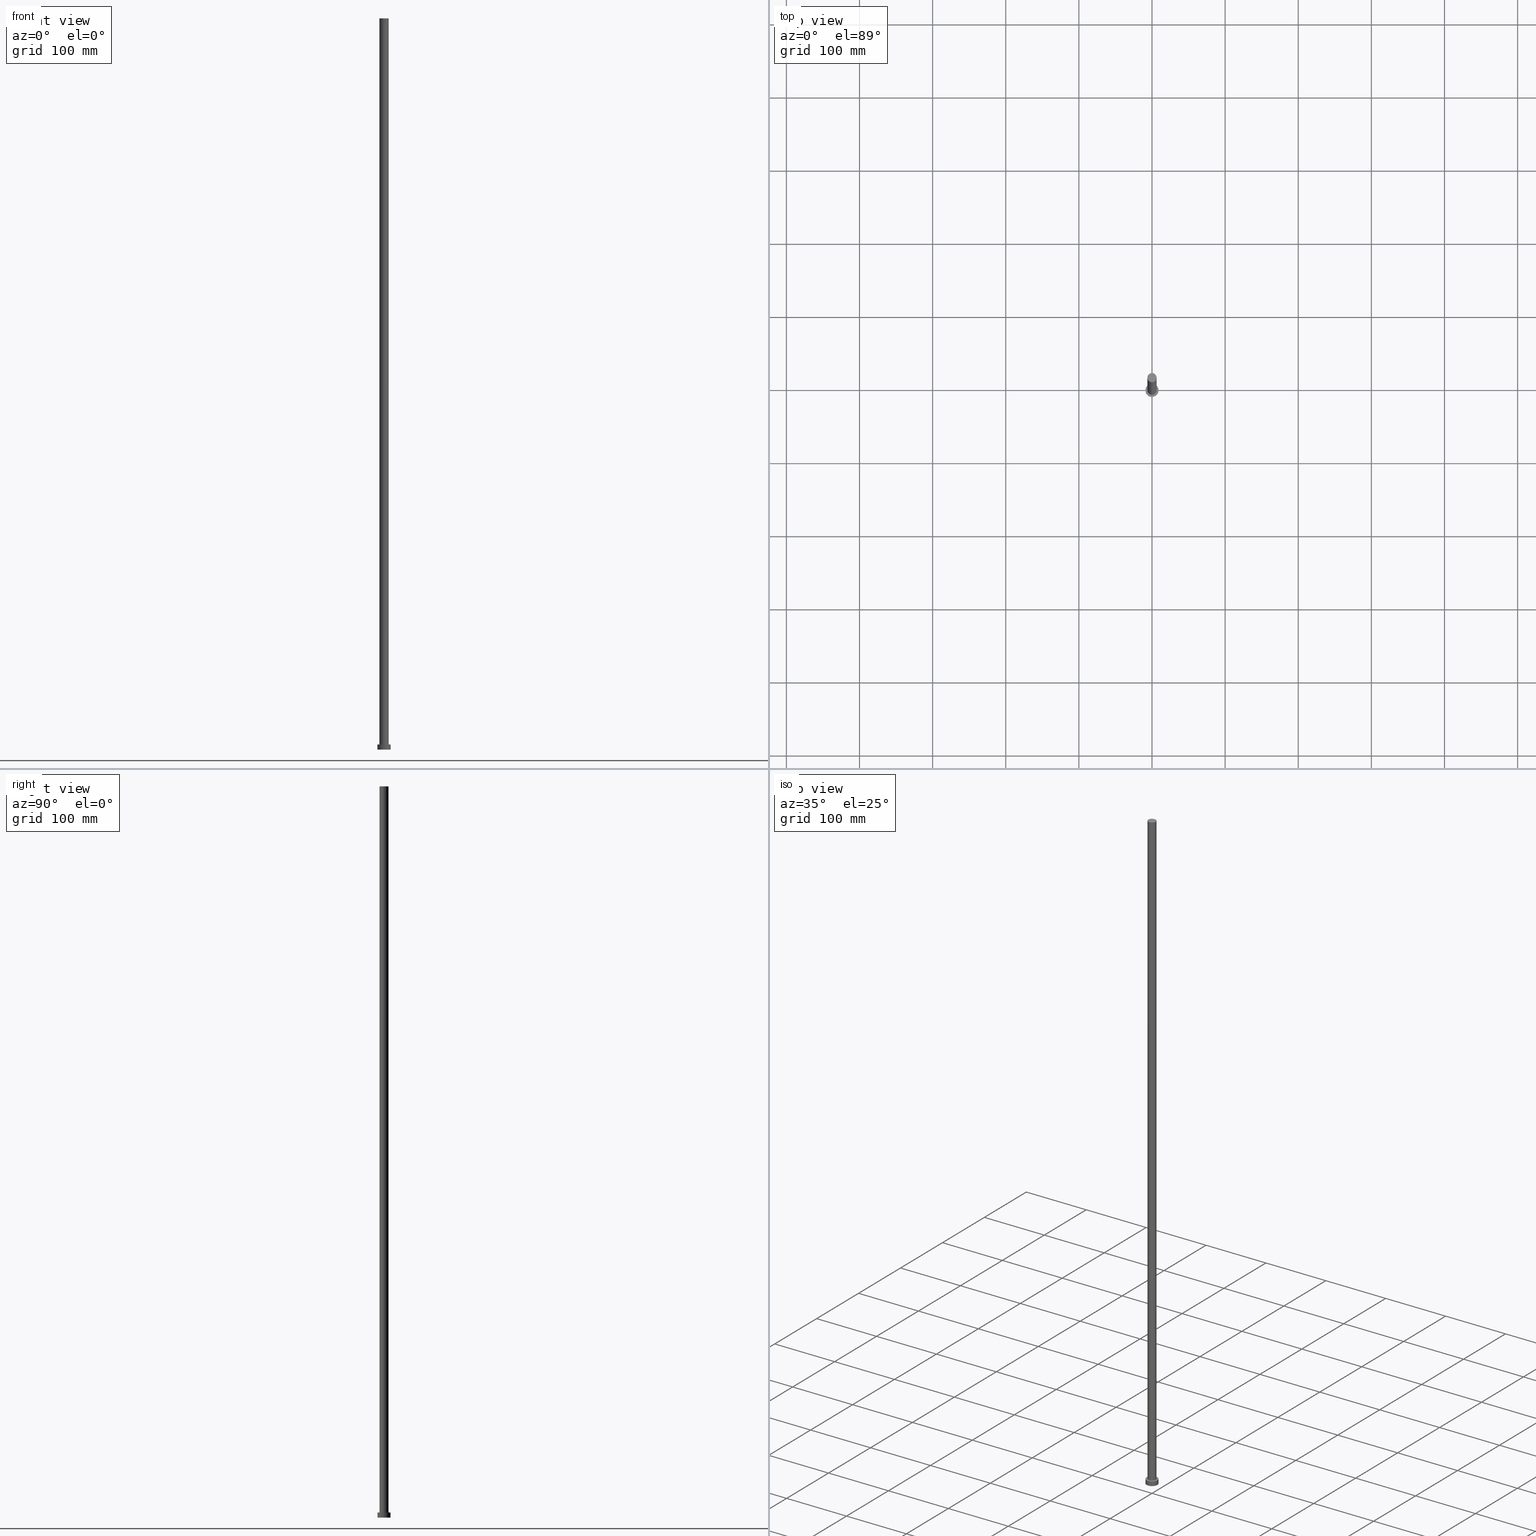
[diagram: canonical four-view strip — front | top / right | iso, engineering-drawing reading convention]
A machine part, canonical four-view strip (front | top / right | iso — engineering-drawing reading convention). The complete STEP part file that produces these views, byte-faithful:
ISO-10303-21;
HEADER;
FILE_DESCRIPTION (( 'STEP AP203' ),
    '1' );
FILE_NAME ('be90.STEP',
    '2023-02-13T10:36:49',
    ( '' ),
    ( '' ),
    'SwSTEP 2.0',
    'SolidWorks 2019',
    '' );
FILE_SCHEMA (( 'CONFIG_CONTROL_DESIGN' ));
ENDSEC;

DATA;
#1 = SHAPE_DEFINITION_REPRESENTATION ( #48, #78 ) ;
#2 = DIRECTION ( 'NONE',  ( 1.000000000000000000, 0.000000000000000000, 0.000000000000000000 ) ) ;
#3 = CARTESIAN_POINT ( 'NONE',  ( 0.000000000000000000, 0.000000000000000000, 1000.000000000000000 ) ) ;
#4 = CARTESIAN_POINT ( 'NONE',  ( -9.000000000000000000, 0.000000000000000000, 7.000000000000000000 ) ) ;
#5 = VECTOR ( 'NONE', #145, 1000.000000000000000 ) ;
#6 = AXIS2_PLACEMENT_3D ( 'NONE', #87, #164, #209 ) ;
#7 = CARTESIAN_POINT ( 'NONE',  ( 6.250000000000000000, 7.654042494670957606E-16, 7.000000000000000000 ) ) ;
#8 = UNCERTAINTY_MEASURE_WITH_UNIT (LENGTH_MEASURE( 1.000000000000000082E-05 ), #127, 'distance_accuracy_value', 'NONE');
#9 = DIRECTION ( 'NONE',  ( -0.000000000000000000, -0.000000000000000000, -1.000000000000000000 ) ) ;
#10 = AXIS2_PLACEMENT_3D ( 'NONE', #56, #107, #189 ) ;
#11 = DATE_AND_TIME ( #108, #92 ) ;
#12 = PLANE ( 'NONE',  #118 ) ;
#13 = PERSON_AND_ORGANIZATION ( #136, #235 ) ;
#14 = CIRCLE ( 'NONE', #71, 9.000000000000000000 ) ;
#15 = CC_DESIGN_SECURITY_CLASSIFICATION ( #183, ( #66 ) ) ;
#16 = CALENDAR_DATE ( 2023, 13, 2 ) ;
#17 = APPROVAL_DATE_TIME ( #254, #185 ) ;
#18 = DATE_TIME_ROLE ( 'classification_date' ) ;
#19 = APPROVAL_PERSON_ORGANIZATION ( #195, #185, #59 ) ;
#20 = ORIENTED_EDGE ( 'NONE', *, *, #113, .T. ) ;
#21 = PERSON_AND_ORGANIZATION ( #136, #235 ) ;
#22 = ORIENTED_EDGE ( 'NONE', *, *, #251, .T. ) ;
#23 = EDGE_CURVE ( 'NONE', #239, #63, #103, .T. ) ;
#24 = ORIENTED_EDGE ( 'NONE', *, *, #23, .T. ) ;
#25 = DIRECTION ( 'NONE',  ( 1.000000000000000000, 0.000000000000000000, 0.000000000000000000 ) ) ;
#26 = CARTESIAN_POINT ( 'NONE',  ( -9.000000000000000000, 0.000000000000000000, 0.000000000000000000 ) ) ;
#27 = CARTESIAN_POINT ( 'NONE',  ( 6.250000000000000000, 7.654042494670957606E-16, 1000.000000000000000 ) ) ;
#28 = LOCAL_TIME ( 11, 36, 49.00000000000000000, #148 ) ;
#29 = DIRECTION ( 'NONE',  ( 0.000000000000000000, 0.000000000000000000, 1.000000000000000000 ) ) ;
#30 = MECHANICAL_CONTEXT ( 'NONE', #74, 'mechanical' ) ;
#31 = DIRECTION ( 'NONE',  ( 1.000000000000000000, 0.000000000000000000, 0.000000000000000000 ) ) ;
#32 = AXIS2_PLACEMENT_3D ( 'NONE', #70, #181, #25 ) ;
#33 = CARTESIAN_POINT ( 'NONE',  ( 0.000000000000000000, 0.000000000000000000, 0.000000000000000000 ) ) ;
#34 = APPROVAL_STATUS ( 'not_yet_approved' ) ;
#35 = ORIENTED_EDGE ( 'NONE', *, *, #99, .F. ) ;
#36 = SECURITY_CLASSIFICATION_LEVEL ( 'unclassified' ) ;
#37 = EDGE_LOOP ( 'NONE', ( #240, #35, #184, #205 ) ) ;
#38 = APPROVAL_STATUS ( 'not_yet_approved' ) ;
#39 = AXIS2_PLACEMENT_3D ( 'NONE', #33, #169, #208 ) ;
#40 = VERTEX_POINT ( 'NONE', #158 ) ;
#41 = APPROVAL_STATUS ( 'not_yet_approved' ) ;
#42 = ORIENTED_EDGE ( 'NONE', *, *, #43, .T. ) ;
#43 = EDGE_CURVE ( 'NONE', #63, #138, #179, .T. ) ;
#44 = ORIENTED_EDGE ( 'NONE', *, *, #171, .T. ) ;
#45 = AXIS2_PLACEMENT_3D ( 'NONE', #167, #77, #227 ) ;
#46 = CARTESIAN_POINT ( 'NONE',  ( 9.000000000000000000, 1.102182119232617714E-15, 7.000000000000000000 ) ) ;
#47 = DIRECTION ( 'NONE',  ( 1.000000000000000000, 0.000000000000000000, -0.000000000000000000 ) ) ;
#48 = PRODUCT_DEFINITION_SHAPE ( 'NONE', 'NONE',  #255 ) ;
#49 = DIRECTION ( 'NONE',  ( -0.000000000000000000, -0.000000000000000000, -1.000000000000000000 ) ) ;
#50 = ORIENTED_EDGE ( 'NONE', *, *, #126, .T. ) ;
#51 = DIRECTION ( 'NONE',  ( 0.000000000000000000, 0.000000000000000000, 1.000000000000000000 ) ) ;
#52 = APPLICATION_PROTOCOL_DEFINITION ( 'international standard', 'config_control_design', 1994, #120 ) ;
#53 =( GEOMETRIC_REPRESENTATION_CONTEXT ( 3 ) GLOBAL_UNCERTAINTY_ASSIGNED_CONTEXT ( ( #8 ) ) GLOBAL_UNIT_ASSIGNED_CONTEXT ( ( #127, #187, #72 ) ) REPRESENTATION_CONTEXT ( 'NONE', 'WORKASPACE' ) );
#54 = DIRECTION ( 'NONE',  ( 0.000000000000000000, 0.000000000000000000, 1.000000000000000000 ) ) ;
#55 = CC_DESIGN_PERSON_AND_ORGANIZATION_ASSIGNMENT ( #62, #95, ( #183 ) ) ;
#56 = CARTESIAN_POINT ( 'NONE',  ( 0.000000000000000000, 0.000000000000000000, 7.000000000000000000 ) ) ;
#57 = ORIENTED_EDGE ( 'NONE', *, *, #152, .T. ) ;
#58 = APPROVAL_DATE_TIME ( #237, #220 ) ;
#59 = APPROVAL_ROLE ( '' ) ;
#60 = ADVANCED_FACE ( 'NONE', ( #102 ), #100, .T. ) ;
#61 = CC_DESIGN_APPROVAL ( #220, ( #66 ) ) ;
#62 = PERSON_AND_ORGANIZATION ( #136, #235 ) ;
#63 = VERTEX_POINT ( 'NONE', #7 ) ;
#64 = VERTEX_POINT ( 'NONE', #26 ) ;
#65 = CARTESIAN_POINT ( 'NONE',  ( 0.000000000000000000, 0.000000000000000000, 0.000000000000000000 ) ) ;
#66 = PRODUCT_DEFINITION_FORMATION_WITH_SPECIFIED_SOURCE ( 'LIBOVOLN�', '', #68, .NOT_KNOWN. ) ;
#67 = DIRECTION ( 'NONE',  ( -1.000000000000000000, 0.000000000000000000, 0.000000000000000000 ) ) ;
#68 = PRODUCT ( 'be90', 'be90', '', ( #30 ) ) ;
#69 = VERTEX_POINT ( 'NONE', #85 ) ;
#70 = CARTESIAN_POINT ( 'NONE',  ( 0.000000000000000000, 0.000000000000000000, 7.000000000000000000 ) ) ;
#71 = AXIS2_PLACEMENT_3D ( 'NONE', #65, #51, #218 ) ;
#72 =( NAMED_UNIT ( * ) SI_UNIT ( $, .STERADIAN. ) SOLID_ANGLE_UNIT ( ) );
#73 = COORDINATED_UNIVERSAL_TIME_OFFSET ( 1, 0, .AHEAD. ) ;
#74 = APPLICATION_CONTEXT ( 'configuration controlled 3d designs of mechanical parts and assemblies' ) ;
#75 = CARTESIAN_POINT ( 'NONE',  ( 0.000000000000000000, 0.000000000000000000, 7.000000000000000000 ) ) ;
#76 = LOCAL_TIME ( 11, 36, 49.00000000000000000, #115 ) ;
#77 = DIRECTION ( 'NONE',  ( 0.000000000000000000, 0.000000000000000000, 1.000000000000000000 ) ) ;
#78 = ADVANCED_BREP_SHAPE_REPRESENTATION ( 'be90', ( #155, #6 ), #53 ) ;
#79 = CIRCLE ( 'NONE', #32, 9.000000000000000000 ) ;
#80 = EDGE_LOOP ( 'NONE', ( #199, #57 ) ) ;
#81 = EDGE_CURVE ( 'NONE', #96, #172, #79, .T. ) ;
#82 = DIRECTION ( 'NONE',  ( 1.000000000000000000, 0.000000000000000000, 0.000000000000000000 ) ) ;
#83 = FACE_OUTER_BOUND ( 'NONE', #80, .T. ) ;
#84 = DIRECTION ( 'NONE',  ( -0.000000000000000000, -0.000000000000000000, -1.000000000000000000 ) ) ;
#85 = CARTESIAN_POINT ( 'NONE',  ( -6.250000000000000000, 0.000000000000000000, 1000.000000000000000 ) ) ;
#86 = FACE_OUTER_BOUND ( 'NONE', #116, .T. ) ;
#87 = CARTESIAN_POINT ( 'NONE',  ( 0.000000000000000000, 0.000000000000000000, 0.000000000000000000 ) ) ;
#88 = AXIS2_PLACEMENT_3D ( 'NONE', #223, #29, #146 ) ;
#89 = CC_DESIGN_APPROVAL ( #161, ( #255 ) ) ;
#90 = PERSON_AND_ORGANIZATION ( #136, #235 ) ;
#91 = PERSON_AND_ORGANIZATION_ROLE ( 'design_owner' ) ;
#92 = LOCAL_TIME ( 11, 36, 49.00000000000000000, #73 ) ;
#93 = DATE_AND_TIME ( #16, #28 ) ;
#94 = VECTOR ( 'NONE', #49, 1000.000000000000000 ) ;
#95 = PERSON_AND_ORGANIZATION_ROLE ( 'classification_officer' ) ;
#96 = VERTEX_POINT ( 'NONE', #186 ) ;
#97 = CC_DESIGN_PERSON_AND_ORGANIZATION_ASSIGNMENT ( #173, #198, ( #66 ) ) ;
#98 = PERSON_AND_ORGANIZATION ( #136, #235 ) ;
#99 = EDGE_CURVE ( 'NONE', #69, #239, #241, .T. ) ;
#100 = CYLINDRICAL_SURFACE ( 'NONE', #224, 6.250000000000000000 ) ;
#101 = CARTESIAN_POINT ( 'NONE',  ( 0.000000000000000000, 0.000000000000000000, 1000.000000000000000 ) ) ;
#102 = FACE_OUTER_BOUND ( 'NONE', #37, .T. ) ;
#103 = LINE ( 'NONE', #27, #200 ) ;
#104 = CYLINDRICAL_SURFACE ( 'NONE', #188, 6.250000000000000000 ) ;
#105 = ADVANCED_FACE ( 'NONE', ( #86 ), #140, .T. ) ;
#106 = CARTESIAN_POINT ( 'NONE',  ( 6.250000000000000000, 7.654042494670957606E-16, 1000.000000000000000 ) ) ;
#107 = DIRECTION ( 'NONE',  ( -0.000000000000000000, -0.000000000000000000, -1.000000000000000000 ) ) ;
#108 = CALENDAR_DATE ( 2023, 13, 2 ) ;
#109 = CIRCLE ( 'NONE', #88, 9.000000000000000000 ) ;
#110 = APPROVAL_PERSON_ORGANIZATION ( #90, #161, #250 ) ;
#111 = ORIENTED_EDGE ( 'NONE', *, *, #230, .F. ) ;
#112 = DATE_TIME_ROLE ( 'creation_date' ) ;
#113 = EDGE_CURVE ( 'NONE', #40, #64, #109, .T. ) ;
#114 = AXIS2_PLACEMENT_3D ( 'NONE', #160, #244, #122 ) ;
#115 = COORDINATED_UNIVERSAL_TIME_OFFSET ( 1, 0, .AHEAD. ) ;
#116 = EDGE_LOOP ( 'NONE', ( #157, #214, #20, #117 ) ) ;
#117 = ORIENTED_EDGE ( 'NONE', *, *, #126, .F. ) ;
#118 = AXIS2_PLACEMENT_3D ( 'NONE', #229, #128, #130 ) ;
#119 = PLANE ( 'NONE',  #211 ) ;
#120 = APPLICATION_CONTEXT ( 'configuration controlled 3d designs of mechanical parts and assemblies' ) ;
#121 = FACE_BOUND ( 'NONE', #238, .T. ) ;
#122 = DIRECTION ( 'NONE',  ( 1.000000000000000000, 0.000000000000000000, 0.000000000000000000 ) ) ;
#123 = AXIS2_PLACEMENT_3D ( 'NONE', #182, #143, #82 ) ;
#124 = LINE ( 'NONE', #4, #94 ) ;
#125 = CARTESIAN_POINT ( 'NONE',  ( -6.250000000000000000, 0.000000000000000000, 7.000000000000000000 ) ) ;
#126 = EDGE_CURVE ( 'NONE', #96, #64, #124, .T. ) ;
#127 =( LENGTH_UNIT ( ) NAMED_UNIT ( * ) SI_UNIT ( .MILLI., .METRE. ) );
#128 = DIRECTION ( 'NONE',  ( 0.000000000000000000, 0.000000000000000000, 1.000000000000000000 ) ) ;
#129 = AXIS2_PLACEMENT_3D ( 'NONE', #75, #54, #31 ) ;
#130 = DIRECTION ( 'NONE',  ( 1.000000000000000000, 0.000000000000000000, -0.000000000000000000 ) ) ;
#131 = FACE_OUTER_BOUND ( 'NONE', #212, .T. ) ;
#132 = COORDINATED_UNIVERSAL_TIME_OFFSET ( 1, 0, .AHEAD. ) ;
#133 = CALENDAR_DATE ( 2023, 13, 2 ) ;
#134 = ORIENTED_EDGE ( 'NONE', *, *, #159, .F. ) ;
#135 = LOCAL_TIME ( 11, 36, 49.00000000000000000, #233 ) ;
#136 = PERSON ( 'NEUR�EN�', 'NEUR�EN�', 'NEUR�EN�', ('NEUR�EN�'), ('NEUR�EN�'), ('NEUR�EN�') ) ;
#137 = PRODUCT_RELATED_PRODUCT_CATEGORY ( 'detail', '', ( #68 ) ) ;
#138 = VERTEX_POINT ( 'NONE', #125 ) ;
#139 = ORIENTED_EDGE ( 'NONE', *, *, #113, .F. ) ;
#140 = CYLINDRICAL_SURFACE ( 'NONE', #207, 9.000000000000000000 ) ;
#141 = CIRCLE ( 'NONE', #129, 9.000000000000000000 ) ;
#142 = CARTESIAN_POINT ( 'NONE',  ( 0.000000000000000000, 0.000000000000000000, 1000.000000000000000 ) ) ;
#143 = DIRECTION ( 'NONE',  ( 0.000000000000000000, 0.000000000000000000, 1.000000000000000000 ) ) ;
#144 = CC_DESIGN_DATE_AND_TIME_ASSIGNMENT ( #93, #112, ( #255 ) ) ;
#145 = DIRECTION ( 'NONE',  ( -0.000000000000000000, -0.000000000000000000, -1.000000000000000000 ) ) ;
#146 = DIRECTION ( 'NONE',  ( 1.000000000000000000, 0.000000000000000000, 0.000000000000000000 ) ) ;
#147 = CC_DESIGN_PERSON_AND_ORGANIZATION_ASSIGNMENT ( #21, #196, ( #66 ) ) ;
#148 = COORDINATED_UNIVERSAL_TIME_OFFSET ( 1, 0, .AHEAD. ) ;
#149 = LOCAL_TIME ( 11, 36, 49.00000000000000000, #132 ) ;
#150 = APPROVAL_DATE_TIME ( #11, #161 ) ;
#151 = CIRCLE ( 'NONE', #45, 6.250000000000000000 ) ;
#152 = EDGE_CURVE ( 'NONE', #239, #69, #246, .T. ) ;
#153 = CC_DESIGN_APPROVAL ( #185, ( #183 ) ) ;
#154 = ORIENTED_EDGE ( 'NONE', *, *, #43, .F. ) ;
#155 = MANIFOLD_SOLID_BREP ( 'P�idat vysunut�m3', #231 ) ;
#156 = CC_DESIGN_PERSON_AND_ORGANIZATION_ASSIGNMENT ( #13, #91, ( #68 ) ) ;
#157 = ORIENTED_EDGE ( 'NONE', *, *, #251, .F. ) ;
#158 = CARTESIAN_POINT ( 'NONE',  ( 9.000000000000000000, 1.102182119232617714E-15, 0.000000000000000000 ) ) ;
#159 = EDGE_CURVE ( 'NONE', #69, #138, #203, .T. ) ;
#160 = CARTESIAN_POINT ( 'NONE',  ( 0.000000000000000000, 0.000000000000000000, 1000.000000000000000 ) ) ;
#161 = APPROVAL ( #34, 'NEUR�EN�' ) ;
#162 = CARTESIAN_POINT ( 'NONE',  ( 0.000000000000000000, 0.000000000000000000, 7.000000000000000000 ) ) ;
#163 = CARTESIAN_POINT ( 'NONE',  ( -6.250000000000000000, 0.000000000000000000, 1000.000000000000000 ) ) ;
#164 = DIRECTION ( 'NONE',  ( 0.000000000000000000, 0.000000000000000000, 1.000000000000000000 ) ) ;
#165 = DESIGN_CONTEXT ( 'detailed design', #120, 'design' ) ;
#166 = PERSON_AND_ORGANIZATION ( #136, #235 ) ;
#167 = CARTESIAN_POINT ( 'NONE',  ( 0.000000000000000000, 0.000000000000000000, 7.000000000000000000 ) ) ;
#168 = ADVANCED_FACE ( 'NONE', ( #204 ), #104, .T. ) ;
#169 = DIRECTION ( 'NONE',  ( 0.000000000000000000, 0.000000000000000000, 1.000000000000000000 ) ) ;
#170 = PLANE ( 'NONE',  #39 ) ;
#171 = EDGE_CURVE ( 'NONE', #64, #40, #14, .T. ) ;
#172 = VERTEX_POINT ( 'NONE', #46 ) ;
#173 = PERSON_AND_ORGANIZATION ( #136, #235 ) ;
#174 = EDGE_LOOP ( 'NONE', ( #111, #180, #50, #44 ) ) ;
#175 = ORIENTED_EDGE ( 'NONE', *, *, #81, .T. ) ;
#176 = ADVANCED_FACE ( 'NONE', ( #83 ), #119, .T. ) ;
#177 = CALENDAR_DATE ( 2023, 13, 2 ) ;
#178 = ORIENTED_EDGE ( 'NONE', *, *, #171, .F. ) ;
#179 = CIRCLE ( 'NONE', #236, 6.250000000000000000 ) ;
#180 = ORIENTED_EDGE ( 'NONE', *, *, #81, .F. ) ;
#181 = DIRECTION ( 'NONE',  ( 0.000000000000000000, 0.000000000000000000, 1.000000000000000000 ) ) ;
#182 = CARTESIAN_POINT ( 'NONE',  ( 0.000000000000000000, 0.000000000000000000, 1000.000000000000000 ) ) ;
#183 = SECURITY_CLASSIFICATION ( '', '', #36 ) ;
#184 = ORIENTED_EDGE ( 'NONE', *, *, #159, .T. ) ;
#185 = APPROVAL ( #41, 'NEUR�EN�' ) ;
#186 = CARTESIAN_POINT ( 'NONE',  ( -9.000000000000000000, 0.000000000000000000, 7.000000000000000000 ) ) ;
#187 =( NAMED_UNIT ( * ) PLANE_ANGLE_UNIT ( ) SI_UNIT ( $, .RADIAN. ) );
#188 = AXIS2_PLACEMENT_3D ( 'NONE', #3, #201, #225 ) ;
#189 = DIRECTION ( 'NONE',  ( -1.000000000000000000, 0.000000000000000000, 0.000000000000000000 ) ) ;
#190 = ADVANCED_FACE ( 'NONE', ( #121, #131 ), #12, .T. ) ;
#191 = CARTESIAN_POINT ( 'NONE',  ( 9.000000000000000000, 1.102182119232617714E-15, 7.000000000000000000 ) ) ;
#192 = CC_DESIGN_PERSON_AND_ORGANIZATION_ASSIGNMENT ( #166, #193, ( #255 ) ) ;
#193 = PERSON_AND_ORGANIZATION_ROLE ( 'creator' ) ;
#194 = ADVANCED_FACE ( 'NONE', ( #206 ), #170, .F. ) ;
#195 = PERSON_AND_ORGANIZATION ( #136, #235 ) ;
#196 = PERSON_AND_ORGANIZATION_ROLE ( 'design_supplier' ) ;
#197 = EDGE_LOOP ( 'NONE', ( #253, #24, #42, #134 ) ) ;
#198 = PERSON_AND_ORGANIZATION_ROLE ( 'creator' ) ;
#199 = ORIENTED_EDGE ( 'NONE', *, *, #99, .T. ) ;
#200 = VECTOR ( 'NONE', #84, 1000.000000000000000 ) ;
#201 = DIRECTION ( 'NONE',  ( -0.000000000000000000, -0.000000000000000000, -1.000000000000000000 ) ) ;
#202 = DIRECTION ( 'NONE',  ( 0.000000000000000000, 0.000000000000000000, 1.000000000000000000 ) ) ;
#203 = LINE ( 'NONE', #163, #5 ) ;
#204 = FACE_OUTER_BOUND ( 'NONE', #197, .T. ) ;
#205 = ORIENTED_EDGE ( 'NONE', *, *, #228, .T. ) ;
#206 = FACE_OUTER_BOUND ( 'NONE', #232, .T. ) ;
#207 = AXIS2_PLACEMENT_3D ( 'NONE', #162, #9, #222 ) ;
#208 = DIRECTION ( 'NONE',  ( 1.000000000000000000, 0.000000000000000000, -0.000000000000000000 ) ) ;
#209 = DIRECTION ( 'NONE',  ( 1.000000000000000000, 0.000000000000000000, 0.000000000000000000 ) ) ;
#210 = ADVANCED_FACE ( 'NONE', ( #248 ), #247, .T. ) ;
#211 = AXIS2_PLACEMENT_3D ( 'NONE', #142, #221, #47 ) ;
#212 = EDGE_LOOP ( 'NONE', ( #175, #22 ) ) ;
#213 = DATE_AND_TIME ( #133, #135 ) ;
#214 = ORIENTED_EDGE ( 'NONE', *, *, #230, .T. ) ;
#215 = APPROVAL_ROLE ( '' ) ;
#216 = CC_DESIGN_DATE_AND_TIME_ASSIGNMENT ( #213, #18, ( #183 ) ) ;
#217 = ORIENTED_EDGE ( 'NONE', *, *, #228, .F. ) ;
#218 = DIRECTION ( 'NONE',  ( 1.000000000000000000, 0.000000000000000000, 0.000000000000000000 ) ) ;
#219 = VECTOR ( 'NONE', #252, 1000.000000000000000 ) ;
#220 = APPROVAL ( #38, 'NEUR�EN�' ) ;
#221 = DIRECTION ( 'NONE',  ( 0.000000000000000000, 0.000000000000000000, 1.000000000000000000 ) ) ;
#222 = DIRECTION ( 'NONE',  ( -1.000000000000000000, 0.000000000000000000, 0.000000000000000000 ) ) ;
#223 = CARTESIAN_POINT ( 'NONE',  ( 0.000000000000000000, 0.000000000000000000, 0.000000000000000000 ) ) ;
#224 = AXIS2_PLACEMENT_3D ( 'NONE', #101, #243, #67 ) ;
#225 = DIRECTION ( 'NONE',  ( -1.000000000000000000, 0.000000000000000000, 0.000000000000000000 ) ) ;
#226 = APPLICATION_PROTOCOL_DEFINITION ( 'international standard', 'config_control_design', 1994, #74 ) ;
#227 = DIRECTION ( 'NONE',  ( 1.000000000000000000, 0.000000000000000000, 0.000000000000000000 ) ) ;
#228 = EDGE_CURVE ( 'NONE', #138, #63, #151, .T. ) ;
#229 = CARTESIAN_POINT ( 'NONE',  ( 0.000000000000000000, 0.000000000000000000, 7.000000000000000000 ) ) ;
#230 = EDGE_CURVE ( 'NONE', #172, #40, #249, .T. ) ;
#231 = CLOSED_SHELL ( 'NONE', ( #168, #105, #210, #190, #194, #60, #176 ) ) ;
#232 = EDGE_LOOP ( 'NONE', ( #178, #139 ) ) ;
#233 = COORDINATED_UNIVERSAL_TIME_OFFSET ( 1, 0, .AHEAD. ) ;
#234 = CALENDAR_DATE ( 2023, 13, 2 ) ;
#235 = ORGANIZATION ( 'NEUR�EN�', 'NEUR�EN�', '' ) ;
#236 = AXIS2_PLACEMENT_3D ( 'NONE', #245, #202, #2 ) ;
#237 = DATE_AND_TIME ( #234, #149 ) ;
#238 = EDGE_LOOP ( 'NONE', ( #217, #154 ) ) ;
#239 = VERTEX_POINT ( 'NONE', #106 ) ;
#240 = ORIENTED_EDGE ( 'NONE', *, *, #23, .F. ) ;
#241 = CIRCLE ( 'NONE', #123, 6.250000000000000000 ) ;
#242 = APPROVAL_PERSON_ORGANIZATION ( #98, #220, #215 ) ;
#243 = DIRECTION ( 'NONE',  ( -0.000000000000000000, -0.000000000000000000, -1.000000000000000000 ) ) ;
#244 = DIRECTION ( 'NONE',  ( 0.000000000000000000, 0.000000000000000000, 1.000000000000000000 ) ) ;
#245 = CARTESIAN_POINT ( 'NONE',  ( 0.000000000000000000, 0.000000000000000000, 7.000000000000000000 ) ) ;
#246 = CIRCLE ( 'NONE', #114, 6.250000000000000000 ) ;
#247 = CYLINDRICAL_SURFACE ( 'NONE', #10, 9.000000000000000000 ) ;
#248 = FACE_OUTER_BOUND ( 'NONE', #174, .T. ) ;
#249 = LINE ( 'NONE', #191, #219 ) ;
#250 = APPROVAL_ROLE ( '' ) ;
#251 = EDGE_CURVE ( 'NONE', #172, #96, #141, .T. ) ;
#252 = DIRECTION ( 'NONE',  ( -0.000000000000000000, -0.000000000000000000, -1.000000000000000000 ) ) ;
#253 = ORIENTED_EDGE ( 'NONE', *, *, #152, .F. ) ;
#254 = DATE_AND_TIME ( #177, #76 ) ;
#255 = PRODUCT_DEFINITION ( 'NEZN�M�', '', #66, #165 ) ;
ENDSEC;
END-ISO-10303-21;
